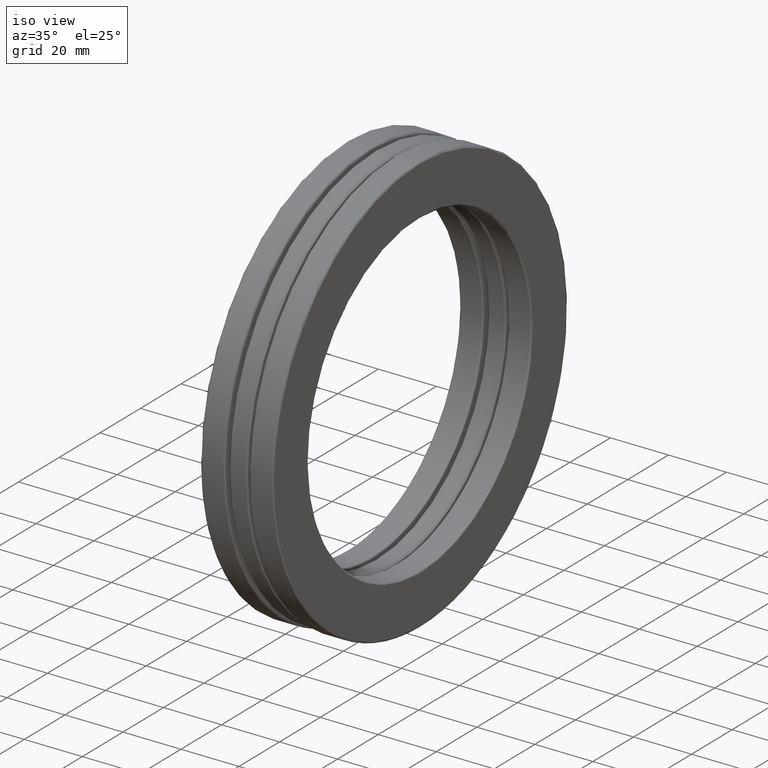
[diagram: clean part render]
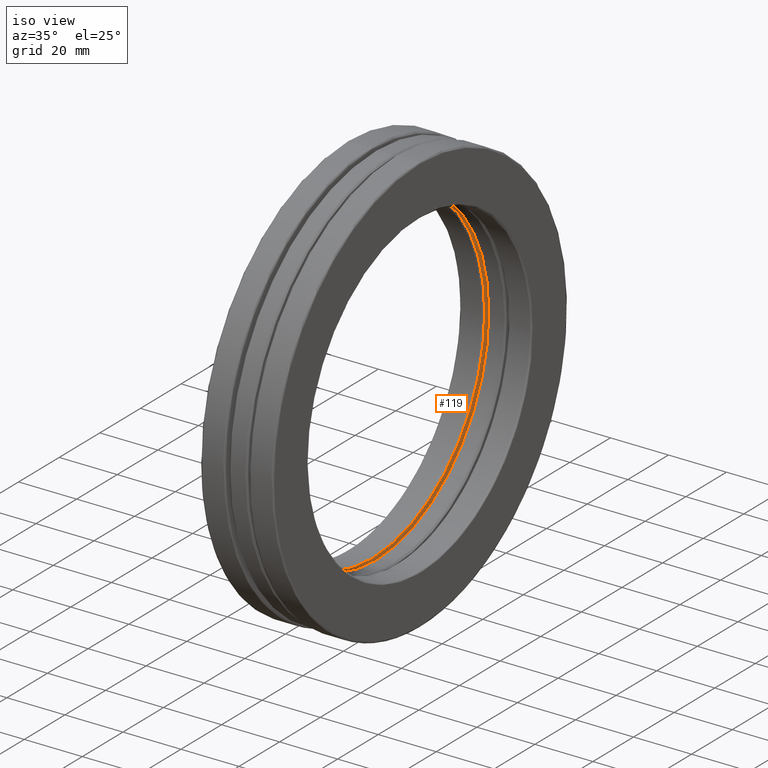
[diagram: same view with one face highlighted and labeled with its STEP entity id]
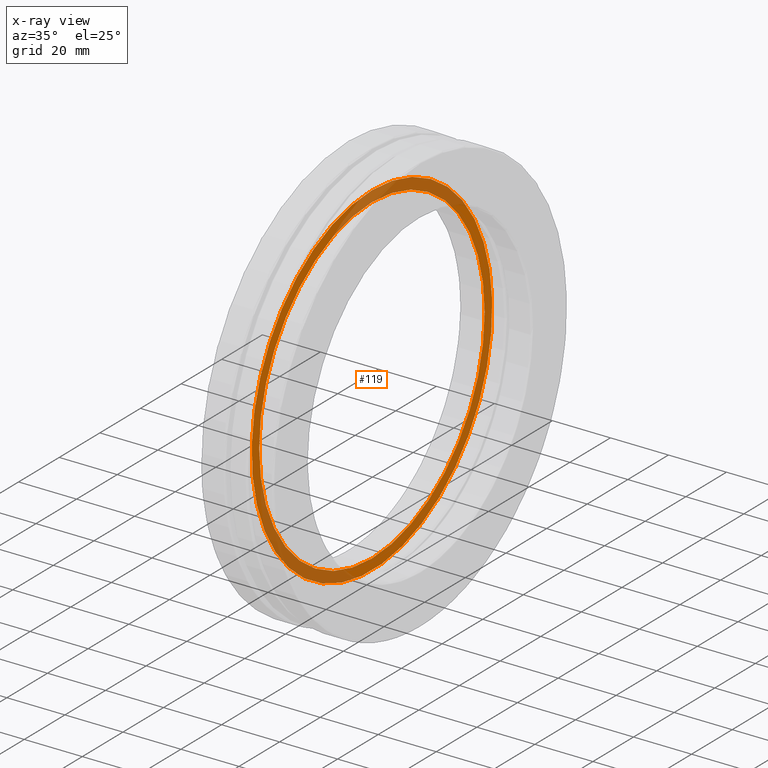
[diagram: x-ray of the same camera — body ghosted, the highlighted face saturated]
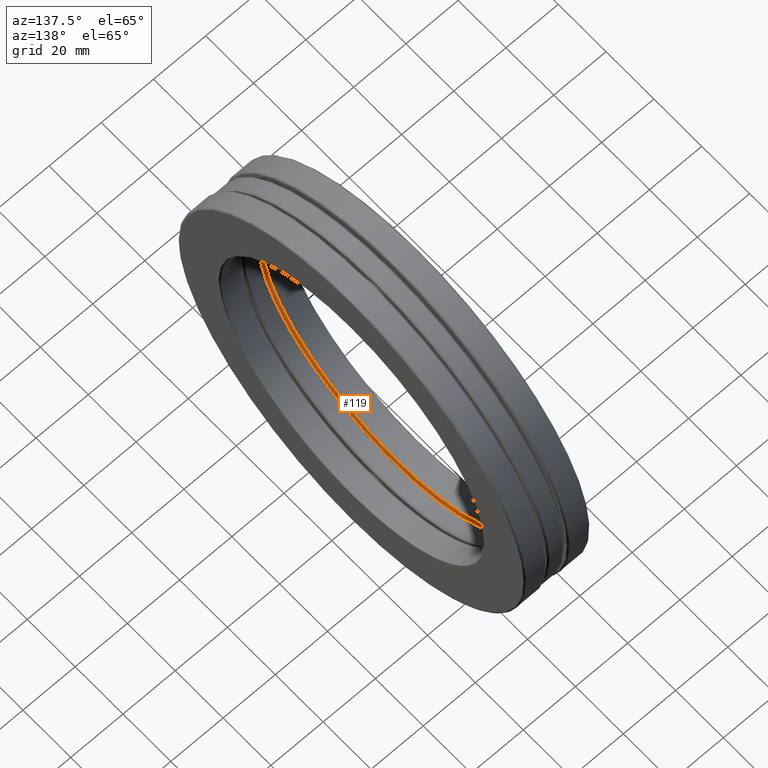
[diagram: same view with one face highlighted and labeled with its STEP entity id]
A machine part, iso view. The second image highlights one B-rep face of the part: STEP entity #119.
The next image is the same camera in x-ray: the body ghosted, the highlighted face saturated — about 34% of this face is hidden behind the body in this view.
A second angle (auxiliary view) of the same face is appended — the face is thin or edge-on in the first view.
In plain terms, the highlighted planar face has unit normal (1, 0, 0).
Its self-contained STEP definition (entity closure, byte-faithful):
#103 = CARTESIAN_POINT ( 'NONE',  ( -0.1640032799999996700, 0.0000000000000000000, 2.185500000000000200 ) ) ;
#109 = CARTESIAN_POINT ( 'NONE',  ( -0.1640032799999996700, 0.0000000000000000000, 0.0000000000000000000 ) ) ;
#119 = ADVANCED_FACE ( 'NONE', ( #666, #388 ), #273, .T. ) ;
#145 = ORIENTED_EDGE ( 'NONE', *, *, #545, .F. ) ;
#147 = EDGE_CURVE ( 'NONE', #523, #523, #693, .T. ) ;
#235 = CIRCLE ( 'NONE', #591, 2.332047972337369500 ) ;
#273 = PLANE ( 'NONE',  #801 ) ;
#279 = DIRECTION ( 'NONE',  ( 0.0000000000000000000, 0.0000000000000000000, 1.000000000000000000 ) ) ;
#327 = DIRECTION ( 'NONE',  ( 0.0000000000000000000, 0.0000000000000000000, -1.000000000000000000 ) ) ;
#340 = CARTESIAN_POINT ( 'NONE',  ( -0.1640032799999996700, -6.040493489900780000E-017, 0.0000000000000000000 ) ) ;
#356 = VERTEX_POINT ( 'NONE', #596 ) ;
#378 = EDGE_LOOP ( 'NONE', ( #145 ) ) ;
#388 = FACE_OUTER_BOUND ( 'NONE', #378, .T. ) ;
#446 = AXIS2_PLACEMENT_3D ( 'NONE', #109, #586, #279 ) ;
#504 = CARTESIAN_POINT ( 'NONE',  ( -0.1640032799999997200, 0.0000000000000000000, 0.0000000000000000000 ) ) ;
#514 = EDGE_LOOP ( 'NONE', ( #603 ) ) ;
#523 = VERTEX_POINT ( 'NONE', #103 ) ;
#545 = EDGE_CURVE ( 'NONE', #356, #356, #235, .T. ) ;
#586 = DIRECTION ( 'NONE',  ( -1.000000000000000000, -0.0000000000000000000, -0.0000000000000000000 ) ) ;
#591 = AXIS2_PLACEMENT_3D ( 'NONE', #504, #625, #630 ) ;
#596 = CARTESIAN_POINT ( 'NONE',  ( -0.1640032799999997200, 0.0000000000000000000, 2.332047972337369500 ) ) ;
#603 = ORIENTED_EDGE ( 'NONE', *, *, #147, .T. ) ;
#625 = DIRECTION ( 'NONE',  ( -1.000000000000000000, -0.0000000000000000000, -0.0000000000000000000 ) ) ;
#630 = DIRECTION ( 'NONE',  ( 0.0000000000000000000, 0.0000000000000000000, 1.000000000000000000 ) ) ;
#666 = FACE_BOUND ( 'NONE', #514, .T. ) ;
#693 = CIRCLE ( 'NONE', #446, 2.185500000000000200 ) ;
#776 = DIRECTION ( 'NONE',  ( 1.000000000000000000, 0.0000000000000000000, 0.0000000000000000000 ) ) ;
#801 = AXIS2_PLACEMENT_3D ( 'NONE', #340, #776, #327 ) ;